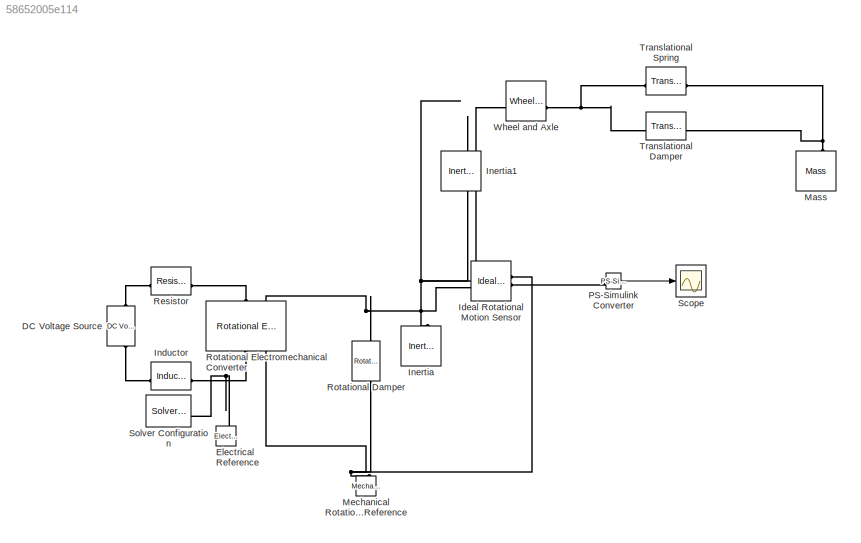
MODEL slx_58652005e114
KIND model
CONFIG AbsTol = auto
CONFIG EnableMultiTasking = off
CONFIG FixedStep = auto
CONFIG MaxStep = auto
CONFIG MinStep = auto
CONFIG RelTol = 1e-3
CONFIG SampleTimeConstraint = Unconstrained
CONFIG SolverName = VariableStepAuto
CONFIG StartTime = 0.0
CONFIG StopTime = 1
BLOCK [Reference] DC Voltage Source  REF=fl_lib/Electrical/Electrical Sources/DC Voltage Source
  NameLocation = right
  SourceBlock = fl_lib/Electrical/Electrical Sources/DC Voltage Source
  SourceType = DC Voltage Source
BLOCK [Reference] Electrical Reference  REF=fl_lib/Electrical/Electrical Elements/Electrical Reference
  NameLocation = right
  SourceBlock = fl_lib/Electrical/Electrical Elements/Electrical Reference
  SourceType = Electrical Reference
BLOCK [Reference] Ideal Rotational Motion Sensor  REF=fl_lib/Mechanical/Mechanical Sensors/Ideal Rotational
Motion Sensor
  SourceBlock = fl_lib/Mechanical/Mechanical Sensors/Ideal Rotational\nMotion Sensor
  SourceType = Ideal Rotational\nMotion Sensor
BLOCK [Reference] Inductor  REF=fl_lib/Electrical/Electrical Elements/Inductor
  SourceBlock = fl_lib/Electrical/Electrical Elements/Inductor
  SourceType = Inductor
BLOCK [Reference] Inertia  REF=fl_lib/Mechanical/Rotational Elements/Inertia
  NameLocation = right
  SourceBlock = fl_lib/Mechanical/Rotational Elements/Inertia
  SourceType = Inertia
BLOCK [Reference] Inertia1  REF=fl_lib/Mechanical/Rotational Elements/Inertia
  NameLocation = right
  SourceBlock = fl_lib/Mechanical/Rotational Elements/Inertia
  SourceType = Inertia
BLOCK [Reference] Mass  REF=fl_lib/Mechanical/Translational
Elements/Mass
  NameLocation = right
  SourceBlock = fl_lib/Mechanical/Translational\nElements/Mass
  SourceType = Mass
BLOCK [Reference] Mechanical Rotational Reference  REF=fl_lib/Mechanical/Rotational Elements/Mechanical
Rotational Reference
  NameLocation = right
  SourceBlock = fl_lib/Mechanical/Rotational Elements/Mechanical\nRotational Reference
  SourceType = Mechanical\nRotational Reference
BLOCK [Reference] PS-Simulink Converter  REF=nesl_utility/PS-Simulink
Converter
  SourceBlock = nesl_utility/PS-Simulink\nConverter
  SourceType = PS-Simulink\nConverter
BLOCK [Reference] Resistor  REF=fl_lib/Electrical/Electrical Elements/Resistor
  SourceBlock = fl_lib/Electrical/Electrical Elements/Resistor
  SourceType = Resistor
BLOCK [Reference] Rotational Damper  REF=fl_lib/Mechanical/Rotational Elements/Rotational Damper
  NameLocation = left
  SourceBlock = fl_lib/Mechanical/Rotational Elements/Rotational Damper
  SourceType = Rotational Damper
BLOCK [Reference] Rotational Electromechanical Converter  REF=fl_lib/Electrical/Electrical Elements/Rotational
Electromechanical
Converter
  NameLocation = right
  SourceBlock = fl_lib/Electrical/Electrical Elements/Rotational\nElectromechanical\nConverter
  SourceType = Rotational\nElectromechanical\nConverter
BLOCK [Scope] Scope
  Floating = off
  NumInputPorts = 1
  ScopeSpecificationString = Simulink.scopes.TimeScopeBlockCfg('CurrentConfiguration', extmgr.ConfigurationSet(extmgr.Configuration('Core','General UI',true,'FigureColor',[1 1 1]),extmgr.Configuration('Core','Source UI',true),extmgr.Configuration('Sources','WiredSimulink',true),extmgr.Configuration('Visuals','Time Domain',true,'SerializedDisplays',{struct('MinYLimReal','-0.16151','MaxYLimReal','21.13263','YLabelReal','','MinY...<+1632ch>
BLOCK [Reference] Solver Configuration  REF=nesl_utility/Solver
Configuration
  SourceBlock = nesl_utility/Solver\nConfiguration
  SourceType = Solver\nConfiguration
BLOCK [Reference] Translational Damper  REF=fl_lib/Mechanical/Translational
Elements/Translational Damper
  SourceBlock = fl_lib/Mechanical/Translational\nElements/Translational Damper
  SourceType = Translational Damper
BLOCK [Reference] Translational Spring  REF=fl_lib/Mechanical/Translational
Elements/Translational Spring
  SourceBlock = fl_lib/Mechanical/Translational\nElements/Translational Spring
  SourceType = Translational Spring
BLOCK [Reference] Wheel and Axle  REF=fl_lib/Mechanical/Mechanisms/Wheel and Axle
  SourceBlock = fl_lib/Mechanical/Mechanisms/Wheel and Axle
  SourceType = Wheel and Axle
LINE PS-Simulink Converter:1 -> Scope:1
PLINE DC Voltage Source:LConn1 -- Resistor:LConn1
PLINE DC Voltage Source:RConn1 -- Inductor:LConn1
PNET net1: Electrical Reference:LConn1 -- Inductor:RConn1 -- Rotational Electromechanical Converter:RConn1 -- Solver Configuration:RConn1
PNET net2: Ideal Rotational Motion Sensor:LConn1 -- Inertia1:LConn1 -- Inertia:LConn1 -- Rotational Damper:LConn1 -- Rotational Electromechanical Converter:LConn2 -- Wheel and Axle:LConn1
PNET net3: Ideal Rotational Motion Sensor:RConn1 -- Mechanical Rotational Reference:LConn1 -- Rotational Damper:RConn1 -- Rotational Electromechanical Converter:RConn2
PLINE Ideal Rotational Motion Sensor:RConn2 -- PS-Simulink Converter:LConn1
PNET net4: Mass:LConn1 -- Translational Damper:RConn1 -- Translational Spring:RConn1
PLINE Resistor:RConn1 -- Rotational Electromechanical Converter:LConn1
PNET net5: Translational Damper:LConn1 -- Translational Spring:LConn1 -- Wheel and Axle:RConn1
note: PNET lines group multi-terminal physical nets as a canonical sorted terminal list (undirected conserving connections); 2-terminal nets keep the pairwise PLINE form
